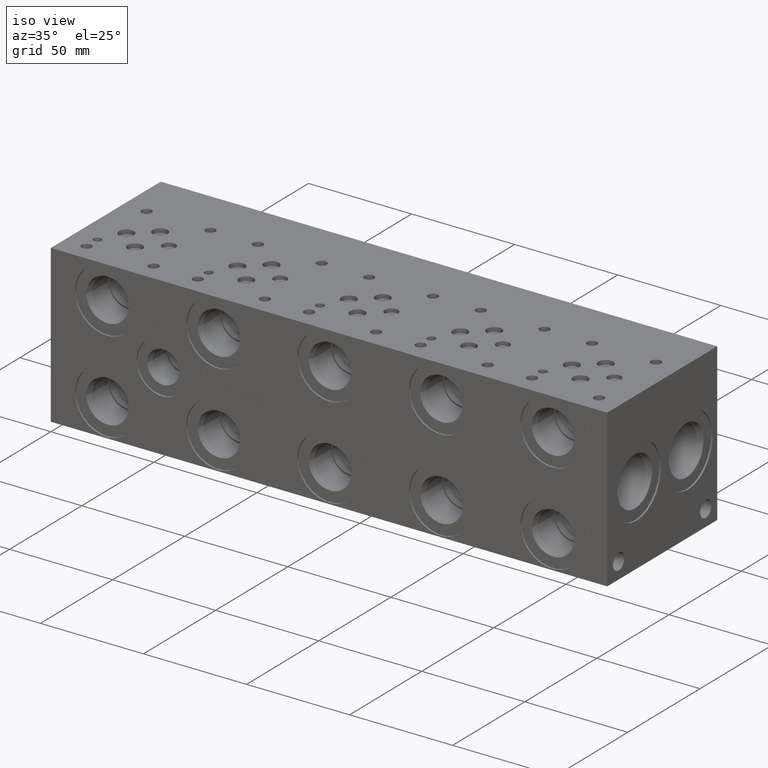
[diagram: clean part render]
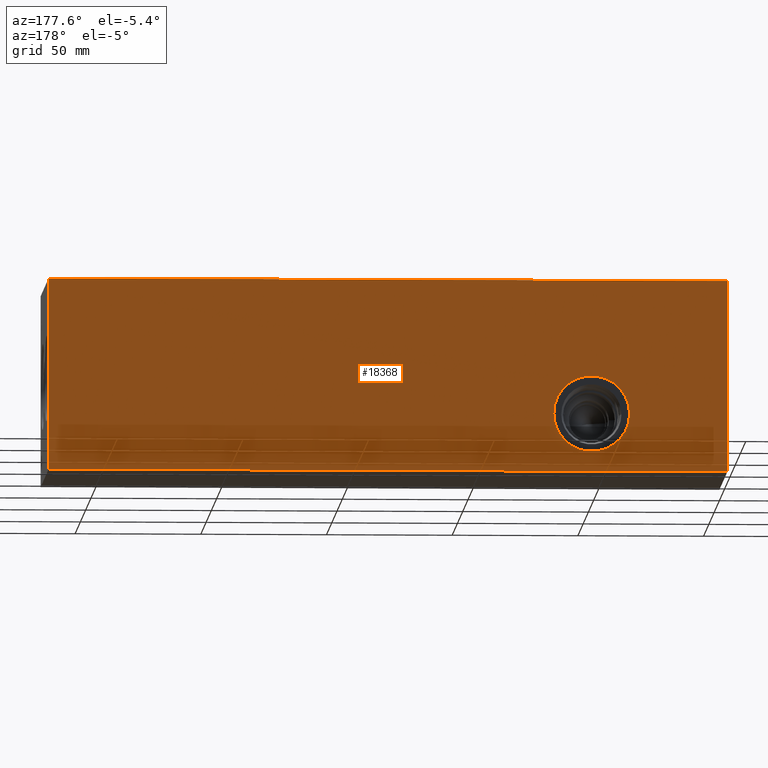
[diagram: tour spotlight — one face highlighted and labeled with its STEP entity id]
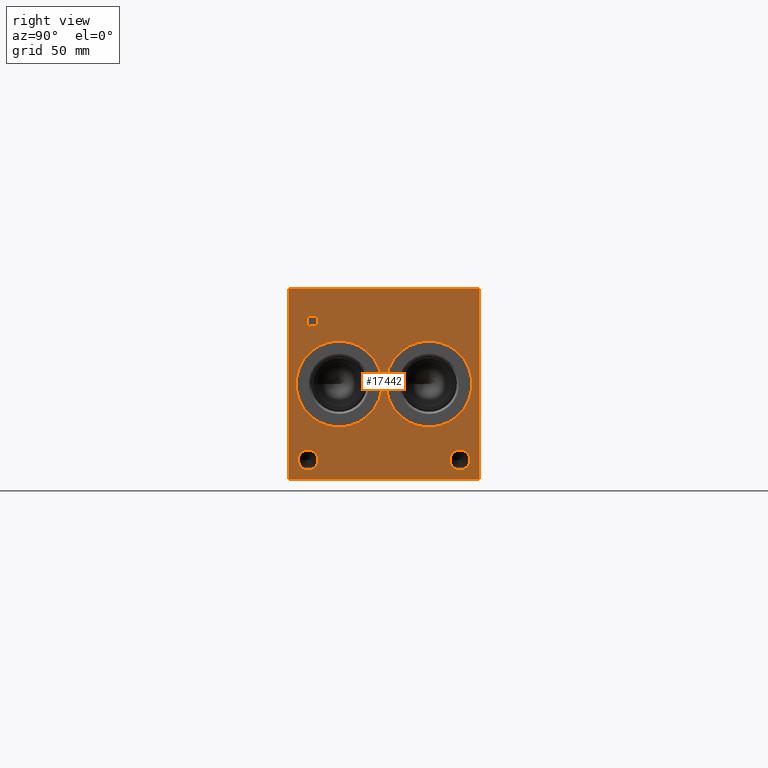
[diagram: tour spotlight — one face highlighted and labeled with its STEP entity id]
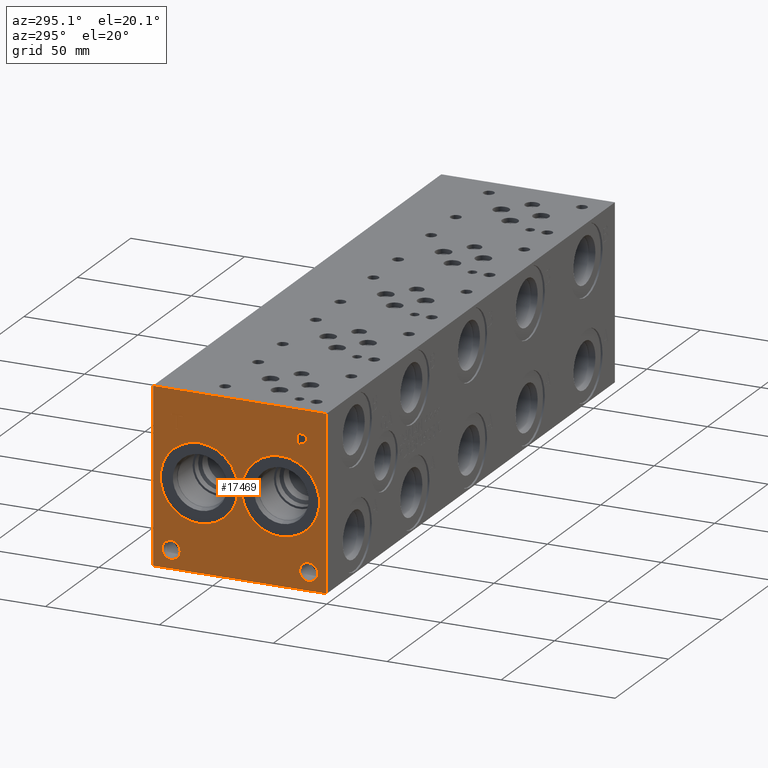
[diagram: tour spotlight — one face highlighted and labeled with its STEP entity id]
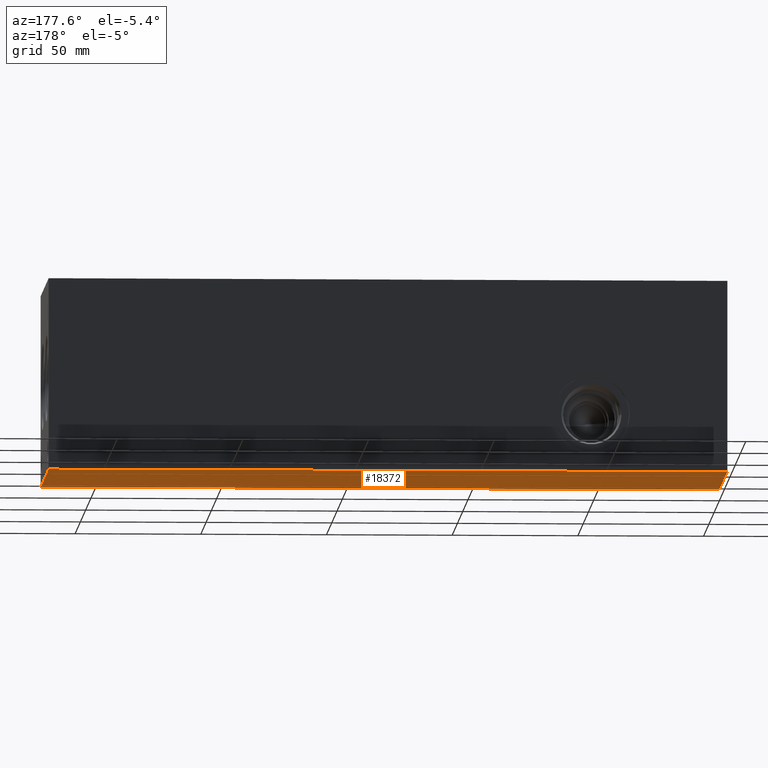
[diagram: tour spotlight — one face highlighted and labeled with its STEP entity id]
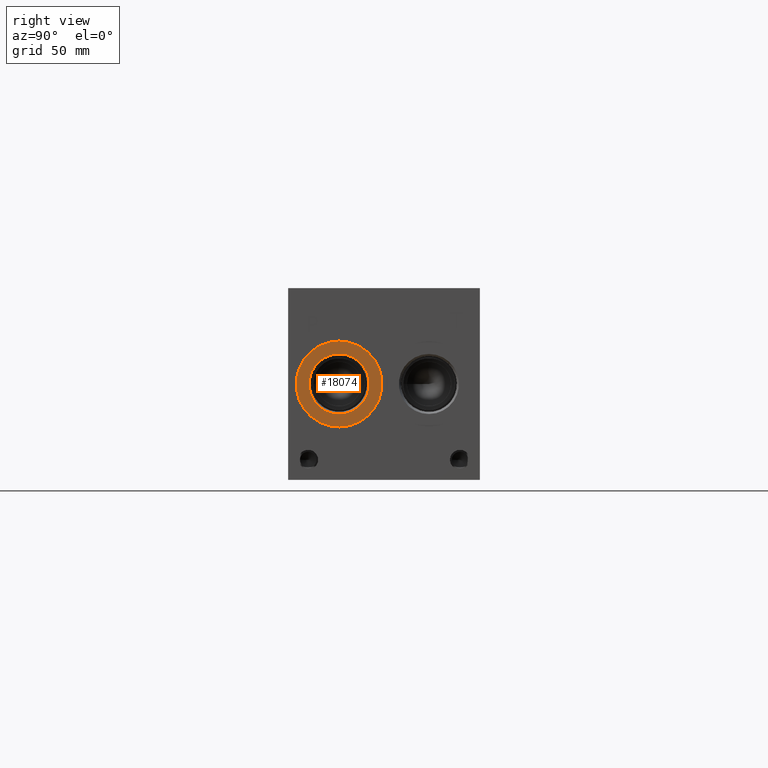
[diagram: tour spotlight — one face highlighted and labeled with its STEP entity id]
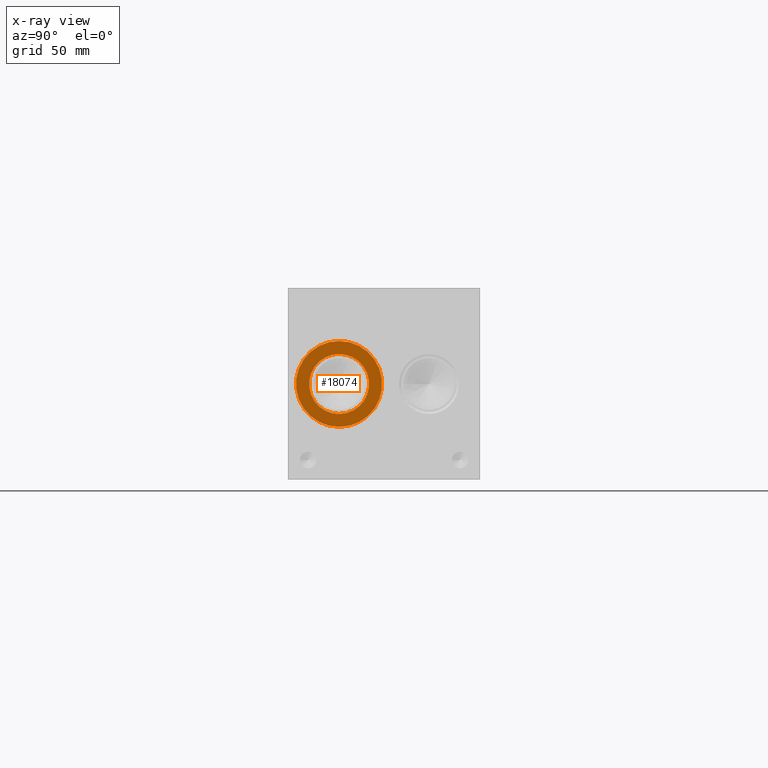
[diagram: x-ray of the same camera — body ghosted, this tour face saturated]
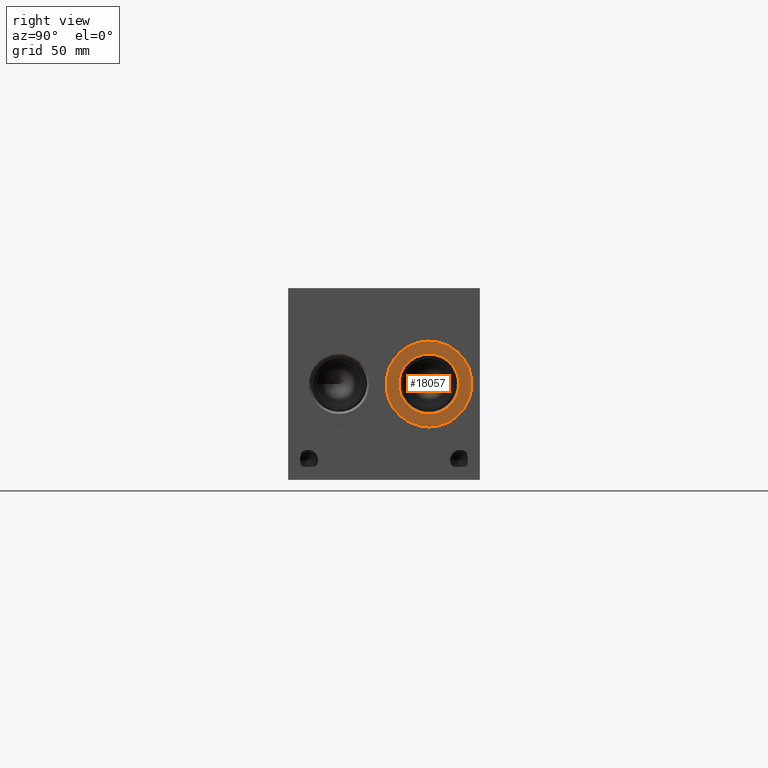
[diagram: tour spotlight — one face highlighted and labeled with its STEP entity id]
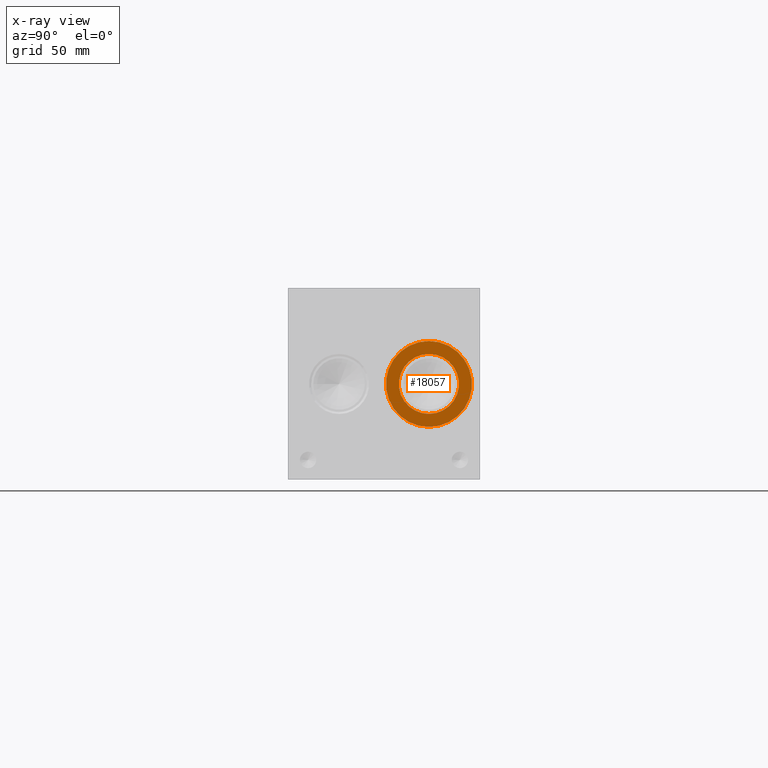
[diagram: x-ray of the same camera — body ghosted, this tour face saturated]
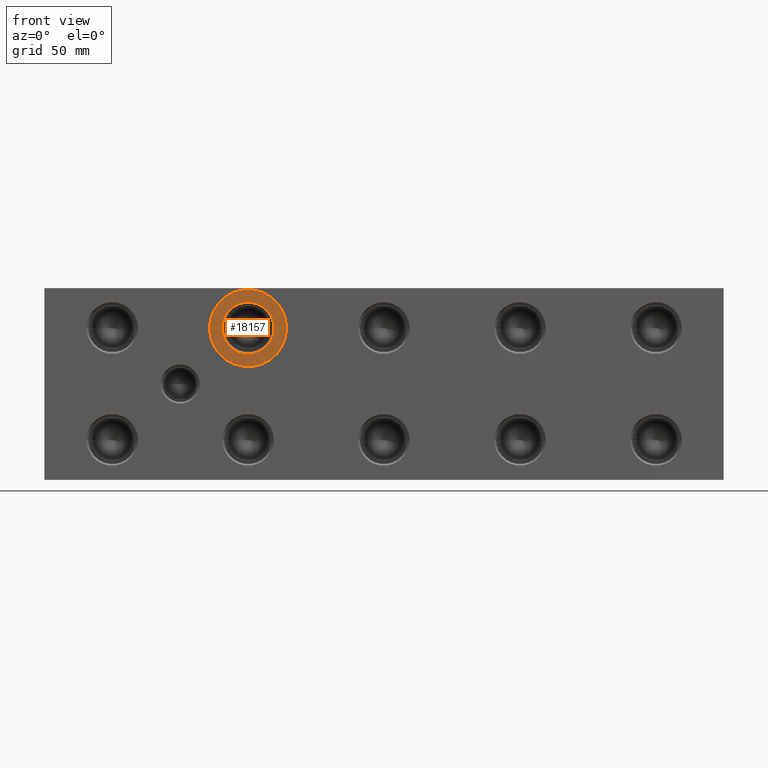
[diagram: tour spotlight — one face highlighted and labeled with its STEP entity id]
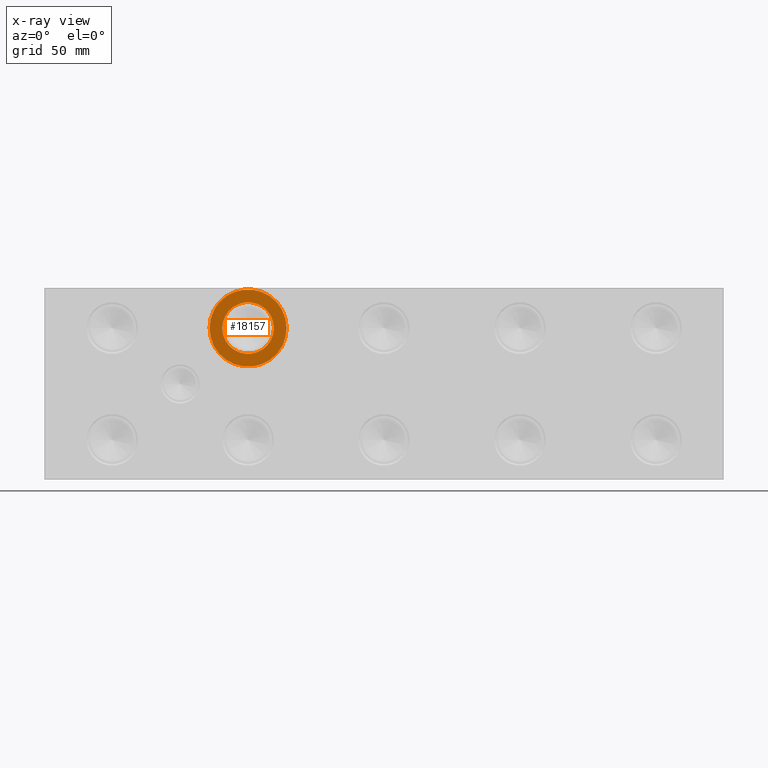
[diagram: x-ray of the same camera — body ghosted, this tour face saturated]
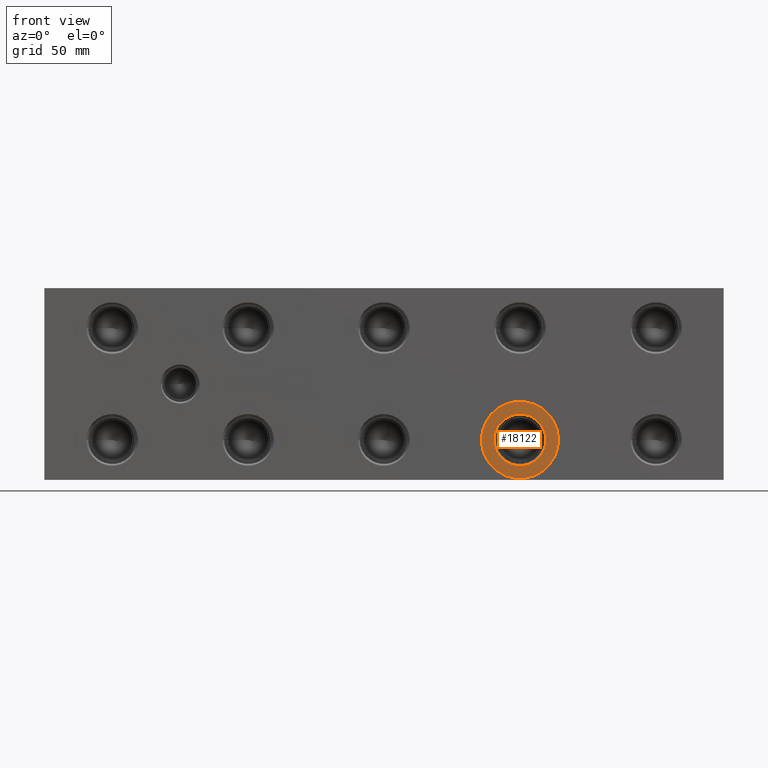
[diagram: tour spotlight — one face highlighted and labeled with its STEP entity id]
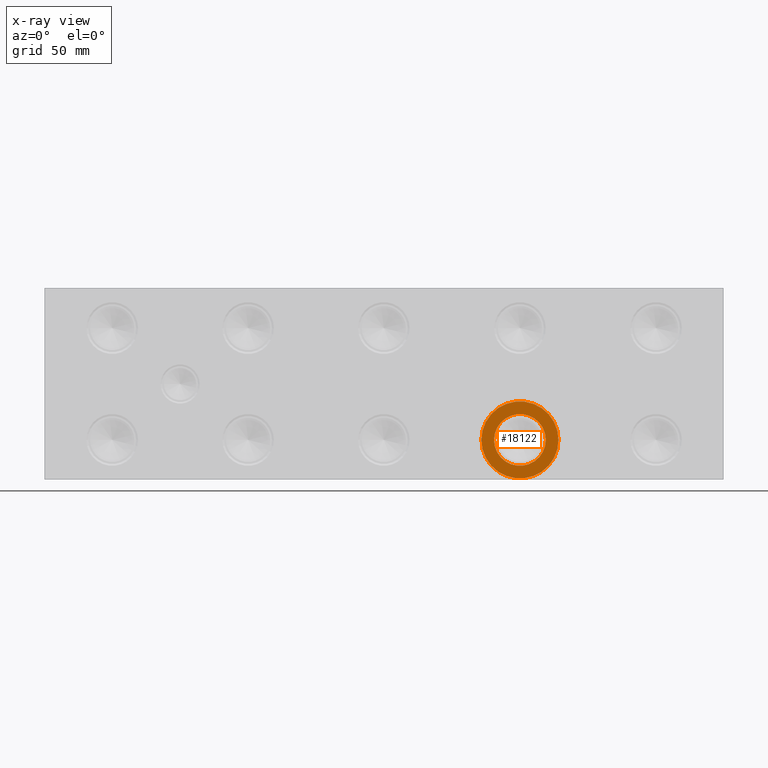
[diagram: x-ray of the same camera — body ghosted, this tour face saturated]
A machine part: a face-by-face anatomy tour. The part has 957 B-rep faces; the first image is the clean iso view, then the 8 largest visible faces are spotlighted one at a time (largest first), each with its STEP entity span.

Face 1 — auxiliary view, entity #18368. In plain terms, the highlighted planar face has unit normal (0, 1, 0).
Definition (entity closure, byte-faithful):
#320=CIRCLE('',#18830,15.08);
#321=CIRCLE('',#18831,15.08);
#1001=FACE_BOUND('',#3762,.T.);
#2668=FACE_OUTER_BOUND('',#3761,.T.);
#3761=EDGE_LOOP('',(#16233,#16234,#16235,#16236));
#3762=EDGE_LOOP('',(#16237,#16238));
#3869=LINE('',#24128,#5401);
#3931=LINE('',#24406,#5463);
#5342=LINE('',#32072,#6874);
#5343=LINE('',#32073,#6875);
#5401=VECTOR('',#19801,10.);
#5463=VECTOR('',#19917,10.);
#6874=VECTOR('',#23862,10.);
#6875=VECTOR('',#23863,10.);
#6925=VERTEX_POINT('',#24125);
#6926=VERTEX_POINT('',#24127);
#6984=VERTEX_POINT('',#24399);
#6987=VERTEX_POINT('',#24404);
#8054=VERTEX_POINT('',#30324);
#8055=VERTEX_POINT('',#30325);
#8737=EDGE_CURVE('',#6925,#6926,#3869,.T.);
#8823=EDGE_CURVE('',#6984,#6987,#3931,.T.);
#10410=EDGE_CURVE('',#8054,#8055,#320,.T.);
#10411=EDGE_CURVE('',#8055,#8054,#321,.T.);
#11223=EDGE_CURVE('',#6925,#6984,#5342,.T.);
#11224=EDGE_CURVE('',#6926,#6987,#5343,.T.);
#16233=ORIENTED_EDGE('',*,*,#11223,.T.);
#16234=ORIENTED_EDGE('',*,*,#8823,.T.);
#16235=ORIENTED_EDGE('',*,*,#11224,.F.);
#16236=ORIENTED_EDGE('',*,*,#8737,.F.);
#16237=ORIENTED_EDGE('',*,*,#10410,.T.);
#16238=ORIENTED_EDGE('',*,*,#10411,.T.);
#16808=PLANE('',#19699);
#18368=ADVANCED_FACE('',(#2668,#1001),#16808,.T.);
#18830=AXIS2_PLACEMENT_3D('',#30326,#21854,#21855);
#18831=AXIS2_PLACEMENT_3D('',#30327,#21856,#21857);
#19699=AXIS2_PLACEMENT_3D('',#32071,#23860,#23861);
#19801=DIRECTION('',(0.,0.,1.));
#19917=DIRECTION('',(0.,0.,1.));
#21854=DIRECTION('center_axis',(0.,-1.,0.));
#21855=DIRECTION('ref_axis',(1.,0.,0.));
#21856=DIRECTION('center_axis',(0.,-1.,0.));
#21857=DIRECTION('ref_axis',(1.,0.,0.));
#23860=DIRECTION('center_axis',(0.,1.,0.));
#23861=DIRECTION('ref_axis',(-1.,0.,0.));
#23862=DIRECTION('',(-1.,0.,0.));
#23863=DIRECTION('',(-1.,0.,0.));
#24125=CARTESIAN_POINT('',(270.002,76.2,0.));
#24127=CARTESIAN_POINT('',(270.002,76.2,76.2));
#24128=CARTESIAN_POINT('',(270.002,76.2,0.));
#24399=CARTESIAN_POINT('',(0.,76.2,0.));
#24404=CARTESIAN_POINT('',(0.,76.2,76.2));
#24406=CARTESIAN_POINT('',(0.,76.2,0.));
#30324=CARTESIAN_POINT('',(69.055,76.2,23.0124));
#30325=CARTESIAN_POINT('',(38.895,76.2,23.0124));
#30326=CARTESIAN_POINT('Origin',(53.975,76.2,23.0124));
#30327=CARTESIAN_POINT('Origin',(53.975,76.2,23.0124));
#32071=CARTESIAN_POINT('Origin',(270.002,76.2,0.));
#32072=CARTESIAN_POINT('',(270.002,76.2,0.));
#32073=CARTESIAN_POINT('',(270.002,76.2,76.2));

Face 2 — right view, entity #17442. In plain terms, the highlighted planar face has unit normal (1, 0, 0).
Definition (entity closure, byte-faithful):
#282=CIRCLE('',#18406,3.9624);
#283=CIRCLE('',#18407,3.9624);
#284=CIRCLE('',#18408,3.9624);
#285=CIRCLE('',#18409,3.9624);
#286=CIRCLE('',#18410,17.0688);
#287=CIRCLE('',#18411,17.0688);
#288=CIRCLE('',#18412,17.0688);
#289=CIRCLE('',#18413,17.0688);
#866=FACE_BOUND('',#2701,.T.);
#867=FACE_BOUND('',#2702,.T.);
#868=FACE_BOUND('',#2703,.T.);
#869=FACE_BOUND('',#2704,.T.);
#870=FACE_BOUND('',#2705,.T.);
#871=FACE_BOUND('',#2706,.T.);
#1055=B_SPLINE_CURVE_WITH_KNOTS('',2,(#24026,#24027,#24028,#24029),
 .UNSPECIFIED.,.F.,.F.,(3,1,3),(0.,1.,2.),.UNSPECIFIED.);
#1057=B_SPLINE_CURVE_WITH_KNOTS('',2,(#24047,#24048,#24049,#24050),
 .UNSPECIFIED.,.F.,.F.,(3,1,3),(0.,1.,2.),.UNSPECIFIED.);
#1059=B_SPLINE_CURVE_WITH_KNOTS('',2,(#24096,#24097,#24098,#24099),
 .UNSPECIFIED.,.F.,.F.,(3,1,3),(0.,1.,2.),.UNSPECIFIED.);
#1061=B_SPLINE_CURVE_WITH_KNOTS('',2,(#24114,#24115,#24116,#24117),
 .UNSPECIFIED.,.F.,.F.,(3,1,3),(0.,1.,2.),.UNSPECIFIED.);
#1742=FACE_OUTER_BOUND('',#2700,.T.);
#2700=EDGE_LOOP('',(#11345,#11346,#11347,#11348));
#2701=EDGE_LOOP('',(#11349,#11350,#11351,#11352,#11353,#11354,#11355,#11356));
#2702=EDGE_LOOP('',(#11357,#11358));
#2703=EDGE_LOOP('',(#11359,#11360));
#2704=EDGE_LOOP('',(#11361,#11362));
#2705=EDGE_LOOP('',(#11363,#11364));
#2706=EDGE_LOOP('',(#11365,#11366,#11367,#11368,#11369,#11370,#11371,#11372,
#11373));
#3812=LINE('',#23876,#5344);
#3816=LINE('',#23884,#5348);
#3819=LINE('',#23890,#5351);
#3822=LINE('',#23896,#5354);
#3825=LINE('',#23902,#5357);
#3828=LINE('',#23908,#5360);
#3831=LINE('',#23914,#5363);
#3834=LINE('',#23919,#5366);
#3852=LINE('',#24059,#5384);
#3855=LINE('',#24065,#5387);
#3858=LINE('',#24071,#5390);
#3861=LINE('',#24077,#5393);
#3864=LINE('',#24083,#5396);
#3868=LINE('',#24126,#5400);
#3869=LINE('',#24128,#5401);
#3870=LINE('',#24130,#5402);
#3871=LINE('',#24131,#5403);
#5344=VECTOR('',#19708,10.);
#5348=VECTOR('',#19714,10.);
#5351=VECTOR('',#19719,10.);
#5354=VECTOR('',#19724,10.);
#5357=VECTOR('',#19729,10.);
#5360=VECTOR('',#19734,10.);
#5363=VECTOR('',#19739,10.);
#5366=VECTOR('',#19744,10.);
#5384=VECTOR('',#19772,10.);
#5387=VECTOR('',#19777,10.);
#5390=VECTOR('',#19782,10.);
#5393=VECTOR('',#19787,10.);
#5396=VECTOR('',#19792,10.);
#5400=VECTOR('',#19800,10.);
#5401=VECTOR('',#19801,10.);
#5402=VECTOR('',#19802,10.);
#5403=VECTOR('',#19803,10.);
#6876=VERTEX_POINT('',#23874);
#6877=VERTEX_POINT('',#23875);
#6880=VERTEX_POINT('',#23883);
#6882=VERTEX_POINT('',#23889);
#6884=VERTEX_POINT('',#23895);
#6886=VERTEX_POINT('',#23901);
#6888=VERTEX_POINT('',#23907);
#6890=VERTEX_POINT('',#23913);
#6906=VERTEX_POINT('',#24024);
#6907=VERTEX_POINT('',#24025);
#6910=VERTEX_POINT('',#24046);
#6912=VERTEX_POINT('',#24058);
#6914=VERTEX_POINT('',#24064);
#6916=VERTEX_POINT('',#24070);
#6918=VERTEX_POINT('',#24076);
#6920=VERTEX_POINT('',#24082);
#6922=VERTEX_POINT('',#24095);
#6924=VERTEX_POINT('',#24124);
#6925=VERTEX_POINT('',#24125);
#6926=VERTEX_POINT('',#24127);
#6927=VERTEX_POINT('',#24129);
#6928=VERTEX_POINT('',#24132);
#6929=VERTEX_POINT('',#24133);
#6930=VERTEX_POINT('',#24136);
#6931=VERTEX_POINT('',#24137);
#6932=VERTEX_POINT('',#24140);
#6933=VERTEX_POINT('',#24141);
#6934=VERTEX_POINT('',#24144);
#6935=VERTEX_POINT('',#24145);
#8664=EDGE_CURVE('',#6876,#6877,#3812,.T.);
#8668=EDGE_CURVE('',#6880,#6876,#3816,.T.);
#8671=EDGE_CURVE('',#6882,#6880,#3819,.T.);
#8674=EDGE_CURVE('',#6884,#6882,#3822,.T.);
#8677=EDGE_CURVE('',#6886,#6884,#3825,.T.);
#8680=EDGE_CURVE('',#6888,#6886,#3828,.T.);
#8683=EDGE_CURVE('',#6890,#6888,#3831,.T.);
#8686=EDGE_CURVE('',#6877,#6890,#3834,.T.);
#8709=EDGE_CURVE('',#6906,#6907,#1055,.T.);
#8713=EDGE_CURVE('',#6910,#6906,#1057,.T.);
#8716=EDGE_CURVE('',#6912,#6910,#3852,.T.);
#8719=EDGE_CURVE('',#6914,#6912,#3855,.T.);
#8722=EDGE_CURVE('',#6916,#6914,#3858,.T.);
#8725=EDGE_CURVE('',#6918,#6916,#3861,.T.);
#8728=EDGE_CURVE('',#6920,#6918,#3864,.T.);
#8731=EDGE_CURVE('',#6922,#6920,#1059,.T.);
#8734=EDGE_CURVE('',#6907,#6922,#1061,.T.);
#8736=EDGE_CURVE('',#6924,#6925,#3868,.T.);
#8737=EDGE_CURVE('',#6925,#6926,#3869,.T.);
#8738=EDGE_CURVE('',#6927,#6926,#3870,.T.);
#8739=EDGE_CURVE('',#6924,#6927,#3871,.T.);
#8740=EDGE_CURVE('',#6928,#6929,#282,.T.);
#8741=EDGE_CURVE('',#6929,#6928,#283,.T.);
#8742=EDGE_CURVE('',#6930,#6931,#284,.T.);
#8743=EDGE_CURVE('',#6931,#6930,#285,.T.);
#8744=EDGE_CURVE('',#6932,#6933,#286,.T.);
#8745=EDGE_CURVE('',#6933,#6932,#287,.T.);
#8746=EDGE_CURVE('',#6934,#6935,#288,.T.);
#8747=EDGE_CURVE('',#6935,#6934,#289,.T.);
#11345=ORIENTED_EDGE('',*,*,#8736,.T.);
#11346=ORIENTED_EDGE('',*,*,#8737,.T.);
#11347=ORIENTED_EDGE('',*,*,#8738,.F.);
#11348=ORIENTED_EDGE('',*,*,#8739,.F.);
#11349=ORIENTED_EDGE('',*,*,#8664,.T.);
#11350=ORIENTED_EDGE('',*,*,#8686,.T.);
#11351=ORIENTED_EDGE('',*,*,#8683,.T.);
#11352=ORIENTED_EDGE('',*,*,#8680,.T.);
#11353=ORIENTED_EDGE('',*,*,#8677,.T.);
#11354=ORIENTED_EDGE('',*,*,#8674,.T.);
#11355=ORIENTED_EDGE('',*,*,#8671,.T.);
#11356=ORIENTED_EDGE('',*,*,#8668,.T.);
#11357=ORIENTED_EDGE('',*,*,#8740,.T.);
#11358=ORIENTED_EDGE('',*,*,#8741,.T.);
#11359=ORIENTED_EDGE('',*,*,#8742,.T.);
#11360=ORIENTED_EDGE('',*,*,#8743,.T.);
#11361=ORIENTED_EDGE('',*,*,#8744,.T.);
#11362=ORIENTED_EDGE('',*,*,#8745,.T.);
#11363=ORIENTED_EDGE('',*,*,#8746,.T.);
#11364=ORIENTED_EDGE('',*,*,#8747,.T.);
#11365=ORIENTED_EDGE('',*,*,#8709,.T.);
#11366=ORIENTED_EDGE('',*,*,#8734,.T.);
#11367=ORIENTED_EDGE('',*,*,#8731,.T.);
#11368=ORIENTED_EDGE('',*,*,#8728,.T.);
#11369=ORIENTED_EDGE('',*,*,#8725,.T.);
#11370=ORIENTED_EDGE('',*,*,#8722,.T.);
#11371=ORIENTED_EDGE('',*,*,#8719,.T.);
#11372=ORIENTED_EDGE('',*,*,#8716,.T.);
#11373=ORIENTED_EDGE('',*,*,#8713,.T.);
#16365=PLANE('',#18405);
#17442=ADVANCED_FACE('',(#1742,#866,#867,#868,#869,#870,#871),#16365,.T.);
#18405=AXIS2_PLACEMENT_3D('',#24123,#19798,#19799);
#18406=AXIS2_PLACEMENT_3D('',#24134,#19804,#19805);
#18407=AXIS2_PLACEMENT_3D('',#24135,#19806,#19807);
#18408=AXIS2_PLACEMENT_3D('',#24138,#19808,#19809);
#18409=AXIS2_PLACEMENT_3D('',#24139,#19810,#19811);
#18410=AXIS2_PLACEMENT_3D('',#24142,#19812,#19813);
#18411=AXIS2_PLACEMENT_3D('',#24143,#19814,#19815);
#18412=AXIS2_PLACEMENT_3D('',#24146,#19816,#19817);
#18413=AXIS2_PLACEMENT_3D('',#24147,#19818,#19819);
#19708=DIRECTION('',(0.,-1.,0.));
#19714=DIRECTION('',(0.,0.,-1.));
#19719=DIRECTION('',(0.,-1.,0.));
#19724=DIRECTION('',(0.,0.,-1.));
#19729=DIRECTION('',(0.,1.,0.));
#19734=DIRECTION('',(0.,0.,1.));
#19739=DIRECTION('',(0.,-1.,0.));
#19744=DIRECTION('',(0.,0.,1.));
#19772=DIRECTION('',(0.,1.,0.));
#19777=DIRECTION('',(0.,0.,1.));
#19782=DIRECTION('',(0.,-1.,0.));
#19787=DIRECTION('',(0.,0.,-1.));
#19792=DIRECTION('',(0.,-1.,0.));
#19798=DIRECTION('center_axis',(1.,0.,0.));
#19799=DIRECTION('ref_axis',(0.,1.,0.));
#19800=DIRECTION('',(0.,1.,0.));
#19801=DIRECTION('',(0.,0.,1.));
#19802=DIRECTION('',(0.,1.,0.));
#19803=DIRECTION('',(0.,0.,1.));
#19804=DIRECTION('center_axis',(-1.,0.,0.));
#19805=DIRECTION('ref_axis',(0.,1.,0.));
#19806=DIRECTION('center_axis',(-1.,0.,0.));
#19807=DIRECTION('ref_axis',(0.,1.,0.));
#19808=DIRECTION('center_axis',(-1.,0.,0.));
#19809=DIRECTION('ref_axis',(0.,1.,0.));
#19810=DIRECTION('center_axis',(-1.,0.,0.));
#19811=DIRECTION('ref_axis',(0.,1.,0.));
#19812=DIRECTION('center_axis',(-1.,0.,0.));
#19813=DIRECTION('ref_axis',(0.,0.,-1.));
#19814=DIRECTION('center_axis',(-1.,0.,0.));
#19815=DIRECTION('ref_axis',(0.,0.,-1.));
#19816=DIRECTION('center_axis',(-1.,0.,0.));
#19817=DIRECTION('ref_axis',(0.,0.,-1.));
#19818=DIRECTION('center_axis',(-1.,0.,0.));
#19819=DIRECTION('ref_axis',(0.,0.,-1.));
#23874=CARTESIAN_POINT('',(270.002,67.262915271453,60.325));
#23875=CARTESIAN_POINT('',(270.002,66.4189930799135,60.325));
#23876=CARTESIAN_POINT('',(270.002,33.6314576357265,60.325));
#23883=CARTESIAN_POINT('',(270.002,67.262915271453,65.9237033194816));
#23884=CARTESIAN_POINT('',(270.002,67.262915271453,32.9618516597408));
#23889=CARTESIAN_POINT('',(270.002,69.3933042183881,65.9237033194816));
#23890=CARTESIAN_POINT('',(270.002,34.696652109194,65.9237033194816));
#23895=CARTESIAN_POINT('',(270.002,69.3933042183881,66.6749999046326));
#23896=CARTESIAN_POINT('',(270.002,69.3933042183881,33.3374999523163));
#23901=CARTESIAN_POINT('',(270.002,64.2886041329784,66.6749999046326));
#23902=CARTESIAN_POINT('',(270.002,32.1443020664892,66.6749999046326));
#23907=CARTESIAN_POINT('',(270.002,64.2886041329784,65.9237033194816));
#23908=CARTESIAN_POINT('',(270.002,64.2886041329784,32.9618516597408));
#23913=CARTESIAN_POINT('',(270.002,66.4189930799135,65.9237033194816));
#23914=CARTESIAN_POINT('',(270.002,33.2094965399567,65.9237033194816));
#23919=CARTESIAN_POINT('',(270.002,66.4189930799135,30.1625));
#24024=CARTESIAN_POINT('',(270.002,11.0443172023594,64.6912681439707));
#24025=CARTESIAN_POINT('',(270.002,11.800759654532,63.1732373726039));
#24026=CARTESIAN_POINT('Ctrl Pts',(270.002,11.0443172023594,64.6912681439707));
#24027=CARTESIAN_POINT('Ctrl Pts',(270.002,11.3993820268486,64.4494123939564));
#24028=CARTESIAN_POINT('Ctrl Pts',(270.002,11.800759654532,63.7032616758269));
#24029=CARTESIAN_POINT('Ctrl Pts',(270.002,11.800759654532,63.1732373726039));
#24046=CARTESIAN_POINT('',(270.002,9.3822021543883,65.0874999046326));
#24047=CARTESIAN_POINT('Ctrl Pts',(270.002,9.3822021543883,65.0874999046326));
#24048=CARTESIAN_POINT('Ctrl Pts',(270.002,9.94824752676236,65.0874999046326));
#24049=CARTESIAN_POINT('Ctrl Pts',(270.002,10.740711048086,64.9022486918556));
#24050=CARTESIAN_POINT('Ctrl Pts',(270.002,11.0443172023594,64.6912681439707));
#24058=CARTESIAN_POINT('',(270.002,7.78698337769779,65.0874999046326));
#24059=CARTESIAN_POINT('',(270.002,3.89349168884889,65.0874999046326));
#24064=CARTESIAN_POINT('',(270.002,7.78698337769779,58.7375));
#24065=CARTESIAN_POINT('',(270.002,7.78698337769779,29.36875));
#24070=CARTESIAN_POINT('',(270.002,8.63090556923729,58.7375));
#24071=CARTESIAN_POINT('',(270.002,4.31545278461864,58.7375));
#24076=CARTESIAN_POINT('',(270.002,8.63090556923729,61.1045988299279));
#24077=CARTESIAN_POINT('',(270.002,8.63090556923729,30.5522994149639));
#24082=CARTESIAN_POINT('',(270.002,9.34618108523723,61.1045988299279));
#24083=CARTESIAN_POINT('',(270.002,4.67309054261861,61.1045988299279));
#24095=CARTESIAN_POINT('',(270.002,11.2450060162011,61.7632698086904));
#24096=CARTESIAN_POINT('Ctrl Pts',(270.002,11.2450060162011,61.7632698086904));
#24097=CARTESIAN_POINT('Ctrl Pts',(270.002,10.9156705268198,61.4390801863307));
#24098=CARTESIAN_POINT('Ctrl Pts',(270.002,10.0254355320861,61.1045988299279));
#24099=CARTESIAN_POINT('Ctrl Pts',(270.002,9.34618108523723,61.1045988299279));
#24114=CARTESIAN_POINT('Ctrl Pts',(270.002,11.800759654532,63.1732373726039));
#24115=CARTESIAN_POINT('Ctrl Pts',(270.002,11.800759654532,62.7615680108774));
#24116=CARTESIAN_POINT('Ctrl Pts',(270.002,11.5074452343018,62.0205631597695));
#24117=CARTESIAN_POINT('Ctrl Pts',(270.002,11.2450060162011,61.7632698086904));
#24123=CARTESIAN_POINT('Origin',(270.002,0.,0.));
#24124=CARTESIAN_POINT('',(270.002,0.,0.));
#24125=CARTESIAN_POINT('',(270.002,76.2,0.));
#24126=CARTESIAN_POINT('',(270.002,0.,0.));
#24127=CARTESIAN_POINT('',(270.002,76.2,76.2));
#24128=CARTESIAN_POINT('',(270.002,76.2,0.));
#24129=CARTESIAN_POINT('',(270.002,0.,76.2));
#24130=CARTESIAN_POINT('',(270.002,0.,76.2));
#24131=CARTESIAN_POINT('',(270.002,0.,0.));
#24132=CARTESIAN_POINT('',(270.002,72.2376,7.9248));
#24133=CARTESIAN_POINT('',(270.002,64.3128,7.9248));
#24134=CARTESIAN_POINT('Origin',(270.002,68.2752,7.9248));
#24135=CARTESIAN_POINT('Origin',(270.002,68.2752,7.9248));
#24136=CARTESIAN_POINT('',(270.002,11.8872,7.9248));
#24137=CARTESIAN_POINT('',(270.002,3.9624,7.9248));
#24138=CARTESIAN_POINT('Origin',(270.002,7.9248,7.9248));
#24139=CARTESIAN_POINT('Origin',(270.002,7.9248,7.9248));
#24140=CARTESIAN_POINT('',(270.002,20.2438,21.0312));
#24141=CARTESIAN_POINT('',(270.002,20.2438,55.1688));
#24142=CARTESIAN_POINT('Origin',(270.002,20.2438,38.1));
#24143=CARTESIAN_POINT('Origin',(270.002,20.2438,38.1));
#24144=CARTESIAN_POINT('',(270.002,55.9562,21.0312));
#24145=CARTESIAN_POINT('',(270.002,55.9562,55.1688));
#24146=CARTESIAN_POINT('Origin',(270.002,55.9562,38.1));
#24147=CARTESIAN_POINT('Origin',(270.002,55.9562,38.1));

Face 3 — auxiliary view, entity #17469. In plain terms, the highlighted planar face has unit normal (-1, 0, 0).
Definition (entity closure, byte-faithful):
#290=CIRCLE('',#18433,3.9624);
#291=CIRCLE('',#18434,3.9624);
#292=CIRCLE('',#18435,3.9624);
#293=CIRCLE('',#18436,3.9624);
#294=CIRCLE('',#18437,17.0688);
#295=CIRCLE('',#18438,17.0688);
#296=CIRCLE('',#18439,17.0688);
#297=CIRCLE('',#18440,17.0688);
#873=FACE_BOUND('',#2735,.T.);
#874=FACE_BOUND('',#2736,.T.);
#875=FACE_BOUND('',#2737,.T.);
#876=FACE_BOUND('',#2738,.T.);
#877=FACE_BOUND('',#2739,.T.);
#878=FACE_BOUND('',#2740,.T.);
#1071=B_SPLINE_CURVE_WITH_KNOTS('',2,(#24301,#24302,#24303,#24304),
 .UNSPECIFIED.,.F.,.F.,(3,1,3),(0.,1.,2.),.UNSPECIFIED.);
#1073=B_SPLINE_CURVE_WITH_KNOTS('',2,(#24322,#24323,#24324,#24325),
 .UNSPECIFIED.,.F.,.F.,(3,1,3),(0.,1.,2.),.UNSPECIFIED.);
#1075=B_SPLINE_CURVE_WITH_KNOTS('',2,(#24371,#24372,#24373,#24374),
 .UNSPECIFIED.,.F.,.F.,(3,1,3),(0.,1.,2.),.UNSPECIFIED.);
#1077=B_SPLINE_CURVE_WITH_KNOTS('',2,(#24389,#24390,#24391,#24392),
 .UNSPECIFIED.,.F.,.F.,(3,1,3),(0.,1.,2.),.UNSPECIFIED.);
#1769=FACE_OUTER_BOUND('',#2734,.T.);
#2734=EDGE_LOOP('',(#11494,#11495,#11496,#11497));
#2735=EDGE_LOOP('',(#11498,#11499,#11500,#11501,#11502,#11503,#11504,#11505));
#2736=EDGE_LOOP('',(#11506,#11507));
#2737=EDGE_LOOP('',(#11508,#11509));
#2738=EDGE_LOOP('',(#11510,#11511));
#2739=EDGE_LOOP('',(#11512,#11513));
#2740=EDGE_LOOP('',(#11514,#11515,#11516,#11517,#11518,#11519,#11520,#11521,
#11522));
#3872=LINE('',#24151,#5404);
#3876=LINE('',#24159,#5408);
#3879=LINE('',#24165,#5411);
#3882=LINE('',#24171,#5414);
#3885=LINE('',#24177,#5417);
#3888=LINE('',#24183,#5420);
#3891=LINE('',#24189,#5423);
#3894=LINE('',#24194,#5426);
#3912=LINE('',#24334,#5444);
#3915=LINE('',#24340,#5447);
#3918=LINE('',#24346,#5450);
#3921=LINE('',#24352,#5453);
#3924=LINE('',#24358,#5456);
#3928=LINE('',#24401,#5460);
#3929=LINE('',#24403,#5461);
#3930=LINE('',#24405,#5462);
#3931=LINE('',#24406,#5463);
#5404=VECTOR('',#19822,10.);
#5408=VECTOR('',#19828,10.);
#5411=VECTOR('',#19833,10.);
#5414=VECTOR('',#19838,10.);
#5417=VECTOR('',#19843,10.);
#5420=VECTOR('',#19848,10.);
#5423=VECTOR('',#19853,10.);
#5426=VECTOR('',#19858,10.);
#5444=VECTOR('',#19886,10.);
#5447=VECTOR('',#19891,10.);
#5450=VECTOR('',#19896,10.);
#5453=VECTOR('',#19901,10.);
#5456=VECTOR('',#19906,10.);
#5460=VECTOR('',#19914,10.);
#5461=VECTOR('',#19915,10.);
#5462=VECTOR('',#19916,10.);
#5463=VECTOR('',#19917,10.);
#6936=VERTEX_POINT('',#24149);
#6937=VERTEX_POINT('',#24150);
#6940=VERTEX_POINT('',#24158);
#6942=VERTEX_POINT('',#24164);
#6944=VERTEX_POINT('',#24170);
#6946=VERTEX_POINT('',#24176);
#6948=VERTEX_POINT('',#24182);
#6950=VERTEX_POINT('',#24188);
#6966=VERTEX_POINT('',#24299);
#6967=VERTEX_POINT('',#24300);
#6970=VERTEX_POINT('',#24321);
#6972=VERTEX_POINT('',#24333);
#6974=VERTEX_POINT('',#24339);
#6976=VERTEX_POINT('',#24345);
#6978=VERTEX_POINT('',#24351);
#6980=VERTEX_POINT('',#24357);
#6982=VERTEX_POINT('',#24370);
#6984=VERTEX_POINT('',#24399);
#6985=VERTEX_POINT('',#24400);
#6986=VERTEX_POINT('',#24402);
#6987=VERTEX_POINT('',#24404);
#6988=VERTEX_POINT('',#24407);
#6989=VERTEX_POINT('',#24408);
#6990=VERTEX_POINT('',#24411);
#6991=VERTEX_POINT('',#24412);
#6992=VERTEX_POINT('',#24415);
#6993=VERTEX_POINT('',#24416);
#6994=VERTEX_POINT('',#24419);
#6995=VERTEX_POINT('',#24420);
#8748=EDGE_CURVE('',#6936,#6937,#3872,.T.);
#8752=EDGE_CURVE('',#6940,#6936,#3876,.T.);
#8755=EDGE_CURVE('',#6942,#6940,#3879,.T.);
#8758=EDGE_CURVE('',#6944,#6942,#3882,.T.);
#8761=EDGE_CURVE('',#6946,#6944,#3885,.T.);
#8764=EDGE_CURVE('',#6948,#6946,#3888,.T.);
#8767=EDGE_CURVE('',#6950,#6948,#3891,.T.);
#8770=EDGE_CURVE('',#6937,#6950,#3894,.T.);
#8793=EDGE_CURVE('',#6966,#6967,#1071,.T.);
#8797=EDGE_CURVE('',#6970,#6966,#1073,.T.);
#8800=EDGE_CURVE('',#6972,#6970,#3912,.T.);
#8803=EDGE_CURVE('',#6974,#6972,#3915,.T.);
#8806=EDGE_CURVE('',#6976,#6974,#3918,.T.);
#8809=EDGE_CURVE('',#6978,#6976,#3921,.T.);
#8812=EDGE_CURVE('',#6980,#6978,#3924,.T.);
#8815=EDGE_CURVE('',#6982,#6980,#1075,.T.);
#8818=EDGE_CURVE('',#6967,#6982,#1077,.T.);
#8820=EDGE_CURVE('',#6984,#6985,#3928,.T.);
#8821=EDGE_CURVE('',#6985,#6986,#3929,.T.);
#8822=EDGE_CURVE('',#6987,#6986,#3930,.T.);
#8823=EDGE_CURVE('',#6984,#6987,#3931,.T.);
#8824=EDGE_CURVE('',#6988,#6989,#290,.T.);
#8825=EDGE_CURVE('',#6989,#6988,#291,.T.);
#8826=EDGE_CURVE('',#6990,#6991,#292,.T.);
#8827=EDGE_CURVE('',#6991,#6990,#293,.T.);
#8828=EDGE_CURVE('',#6992,#6993,#294,.T.);
#8829=EDGE_CURVE('',#6993,#6992,#295,.T.);
#8830=EDGE_CURVE('',#6994,#6995,#296,.T.);
#8831=EDGE_CURVE('',#6995,#6994,#297,.T.);
#11494=ORIENTED_EDGE('',*,*,#8820,.T.);
#11495=ORIENTED_EDGE('',*,*,#8821,.T.);
#11496=ORIENTED_EDGE('',*,*,#8822,.F.);
#11497=ORIENTED_EDGE('',*,*,#8823,.F.);
#11498=ORIENTED_EDGE('',*,*,#8748,.T.);
#11499=ORIENTED_EDGE('',*,*,#8770,.T.);
#11500=ORIENTED_EDGE('',*,*,#8767,.T.);
#11501=ORIENTED_EDGE('',*,*,#8764,.T.);
#11502=ORIENTED_EDGE('',*,*,#8761,.T.);
#11503=ORIENTED_EDGE('',*,*,#8758,.T.);
#11504=ORIENTED_EDGE('',*,*,#8755,.T.);
#11505=ORIENTED_EDGE('',*,*,#8752,.T.);
#11506=ORIENTED_EDGE('',*,*,#8824,.T.);
#11507=ORIENTED_EDGE('',*,*,#8825,.T.);
#11508=ORIENTED_EDGE('',*,*,#8826,.T.);
#11509=ORIENTED_EDGE('',*,*,#8827,.T.);
#11510=ORIENTED_EDGE('',*,*,#8828,.T.);
#11511=ORIENTED_EDGE('',*,*,#8829,.T.);
#11512=ORIENTED_EDGE('',*,*,#8830,.T.);
#11513=ORIENTED_EDGE('',*,*,#8831,.T.);
#11514=ORIENTED_EDGE('',*,*,#8793,.T.);
#11515=ORIENTED_EDGE('',*,*,#8818,.T.);
#11516=ORIENTED_EDGE('',*,*,#8815,.T.);
#11517=ORIENTED_EDGE('',*,*,#8812,.T.);
#11518=ORIENTED_EDGE('',*,*,#8809,.T.);
#11519=ORIENTED_EDGE('',*,*,#8806,.T.);
#11520=ORIENTED_EDGE('',*,*,#8803,.T.);
#11521=ORIENTED_EDGE('',*,*,#8800,.T.);
#11522=ORIENTED_EDGE('',*,*,#8797,.T.);
#16384=PLANE('',#18432);
#17469=ADVANCED_FACE('',(#1769,#873,#874,#875,#876,#877,#878),#16384,.T.);
#18432=AXIS2_PLACEMENT_3D('',#24398,#19912,#19913);
#18433=AXIS2_PLACEMENT_3D('',#24409,#19918,#19919);
#18434=AXIS2_PLACEMENT_3D('',#24410,#19920,#19921);
#18435=AXIS2_PLACEMENT_3D('',#24413,#19922,#19923);
#18436=AXIS2_PLACEMENT_3D('',#24414,#19924,#19925);
#18437=AXIS2_PLACEMENT_3D('',#24417,#19926,#19927);
#18438=AXIS2_PLACEMENT_3D('',#24418,#19928,#19929);
#18439=AXIS2_PLACEMENT_3D('',#24421,#19930,#19931);
#18440=AXIS2_PLACEMENT_3D('',#24422,#19932,#19933);
#19822=DIRECTION('',(0.,1.,1.05244112384329E-14));
#19828=DIRECTION('',(0.,3.17280044688052E-15,-1.));
#19833=DIRECTION('',(0.,1.,0.));
#19838=DIRECTION('',(0.,0.,-1.));
#19843=DIRECTION('',(0.,-1.,-3.47984565141735E-15));
#19848=DIRECTION('',(0.,0.,1.));
#19853=DIRECTION('',(0.,1.,4.16909044227779E-15));
#19858=DIRECTION('',(0.,-3.17280044688052E-15,1.));
#19886=DIRECTION('',(0.,-1.,0.));
#19891=DIRECTION('',(0.,-3.14708893596576E-15,1.));
#19896=DIRECTION('',(0.,1.,0.));
#19901=DIRECTION('',(0.,3.75218139805001E-15,-1.));
#19906=DIRECTION('',(0.,1.,0.));
#19912=DIRECTION('center_axis',(-1.,0.,0.));
#19913=DIRECTION('ref_axis',(0.,-1.,0.));
#19914=DIRECTION('',(0.,-1.,0.));
#19915=DIRECTION('',(0.,0.,1.));
#19916=DIRECTION('',(0.,-1.,0.));
#19917=DIRECTION('',(0.,0.,1.));
#19918=DIRECTION('center_axis',(1.,0.,0.));
#19919=DIRECTION('ref_axis',(0.,1.,0.));
#19920=DIRECTION('center_axis',(1.,0.,0.));
#19921=DIRECTION('ref_axis',(0.,1.,0.));
#19922=DIRECTION('center_axis',(1.,0.,0.));
#19923=DIRECTION('ref_axis',(0.,1.,0.));
#19924=DIRECTION('center_axis',(1.,0.,0.));
#19925=DIRECTION('ref_axis',(0.,1.,0.));
#19926=DIRECTION('center_axis',(1.,0.,0.));
#19927=DIRECTION('ref_axis',(0.,0.,1.));
#19928=DIRECTION('center_axis',(1.,0.,0.));
#19929=DIRECTION('ref_axis',(0.,0.,1.));
#19930=DIRECTION('center_axis',(1.,0.,0.));
#19931=DIRECTION('ref_axis',(0.,0.,1.));
#19932=DIRECTION('center_axis',(1.,0.,0.));
#19933=DIRECTION('ref_axis',(0.,0.,1.));
#24149=CARTESIAN_POINT('',(0.,65.293334728547,59.53125));
#24150=CARTESIAN_POINT('',(0.,66.1372569200865,59.53125));
#24151=CARTESIAN_POINT('',(0.,70.7466673642732,59.5312500000001));
#24158=CARTESIAN_POINT('',(0.,65.293334728547,65.1299533194816));
#24159=CARTESIAN_POINT('',(0.,65.2933347285471,32.5649766597408));
#24164=CARTESIAN_POINT('',(0.,63.1629457816119,65.1299533194816));
#24165=CARTESIAN_POINT('',(0.,69.681472890806,65.1299533194816));
#24170=CARTESIAN_POINT('',(0.,63.1629457816119,65.8812499046326));
#24171=CARTESIAN_POINT('',(0.,63.1629457816119,32.9406249523163));
#24176=CARTESIAN_POINT('',(0.,68.2676458670216,65.8812499046326));
#24177=CARTESIAN_POINT('',(0.,72.2338229335107,65.8812499046326));
#24182=CARTESIAN_POINT('',(0.,68.2676458670216,65.1299533194816));
#24183=CARTESIAN_POINT('',(0.,68.2676458670216,32.5649766597408));
#24188=CARTESIAN_POINT('',(0.,66.1372569200865,65.1299533194816));
#24189=CARTESIAN_POINT('',(0.,71.1686284600431,65.1299533194816));
#24194=CARTESIAN_POINT('',(0.,66.1372569200866,29.765625));
#24299=CARTESIAN_POINT('',(0.,9.59318279764059,65.4850181439707));
#24300=CARTESIAN_POINT('',(0.,8.83674034546799,63.966987372604));
#24301=CARTESIAN_POINT('Ctrl Pts',(0.,9.59318279764059,65.4850181439707));
#24302=CARTESIAN_POINT('Ctrl Pts',(0.,9.23811797315141,65.2431623939564));
#24303=CARTESIAN_POINT('Ctrl Pts',(0.,8.83674034546799,64.4970116758269));
#24304=CARTESIAN_POINT('Ctrl Pts',(0.,8.83674034546799,63.966987372604));
#24321=CARTESIAN_POINT('',(0.,11.2552978456117,65.8812499046326));
#24322=CARTESIAN_POINT('Ctrl Pts',(0.,11.2552978456117,65.8812499046326));
#24323=CARTESIAN_POINT('Ctrl Pts',(0.,10.6892524732376,65.8812499046326));
#24324=CARTESIAN_POINT('Ctrl Pts',(0.,9.89678895191394,65.6959986918556));
#24325=CARTESIAN_POINT('Ctrl Pts',(0.,9.59318279764059,65.4850181439707));
#24333=CARTESIAN_POINT('',(0.,12.8505166223022,65.8812499046326));
#24334=CARTESIAN_POINT('',(0.,44.5252583111511,65.8812499046326));
#24339=CARTESIAN_POINT('',(0.,12.8505166223022,59.53125));
#24340=CARTESIAN_POINT('',(0.,12.8505166223023,29.7656249999999));
#24345=CARTESIAN_POINT('',(0.,12.0065944307627,59.53125));
#24346=CARTESIAN_POINT('',(0.,44.1032972153814,59.53125));
#24351=CARTESIAN_POINT('',(0.,12.0065944307627,61.8983488299279));
#24352=CARTESIAN_POINT('',(0.,12.0065944307628,30.9491744149638));
#24357=CARTESIAN_POINT('',(0.,11.2913189147628,61.8983488299279));
#24358=CARTESIAN_POINT('',(0.,43.7456594573814,61.8983488299279));
#24370=CARTESIAN_POINT('',(0.,9.39249398379889,62.5570198086904));
#24371=CARTESIAN_POINT('Ctrl Pts',(0.,9.39249398379889,62.5570198086904));
#24372=CARTESIAN_POINT('Ctrl Pts',(0.,9.72182947318016,62.2328301863307));
#24373=CARTESIAN_POINT('Ctrl Pts',(0.,10.6120644679139,61.8983488299279));
#24374=CARTESIAN_POINT('Ctrl Pts',(0.,11.2913189147628,61.8983488299279));
#24389=CARTESIAN_POINT('Ctrl Pts',(0.,8.83674034546799,63.966987372604));
#24390=CARTESIAN_POINT('Ctrl Pts',(0.,8.83674034546799,63.5553180108774));
#24391=CARTESIAN_POINT('Ctrl Pts',(0.,9.13005476569819,62.8143131597695));
#24392=CARTESIAN_POINT('Ctrl Pts',(0.,9.39249398379889,62.5570198086904));
#24398=CARTESIAN_POINT('Origin',(0.,76.2,0.));
#24399=CARTESIAN_POINT('',(0.,76.2,0.));
#24400=CARTESIAN_POINT('',(0.,0.,0.));
#24401=CARTESIAN_POINT('',(0.,76.2,0.));
#24402=CARTESIAN_POINT('',(0.,0.,76.2));
#24403=CARTESIAN_POINT('',(0.,0.,0.));
#24404=CARTESIAN_POINT('',(0.,76.2,76.2));
#24405=CARTESIAN_POINT('',(0.,76.2,76.2));
#24406=CARTESIAN_POINT('',(0.,76.2,0.));
#24407=CARTESIAN_POINT('',(0.,11.8872,7.92480000000001));
#24408=CARTESIAN_POINT('',(0.,3.9624,7.92480000000001));
#24409=CARTESIAN_POINT('Origin',(0.,7.9248,7.92480000000001));
#24410=CARTESIAN_POINT('Origin',(0.,7.9248,7.92480000000001));
#24411=CARTESIAN_POINT('',(0.,72.2376,7.92480000000001));
#24412=CARTESIAN_POINT('',(0.,64.3128,7.92480000000001));
#24413=CARTESIAN_POINT('Origin',(0.,68.2752,7.92480000000001));
#24414=CARTESIAN_POINT('Origin',(0.,68.2752,7.92480000000001));
#24415=CARTESIAN_POINT('',(0.,20.2438,55.1688));
#24416=CARTESIAN_POINT('',(0.,20.2438,21.0312));
#24417=CARTESIAN_POINT('Origin',(0.,20.2438,38.1));
#24418=CARTESIAN_POINT('Origin',(0.,20.2438,38.1));
#24419=CARTESIAN_POINT('',(0.,55.9562,55.1688));
#24420=CARTESIAN_POINT('',(0.,55.9562,21.0312));
#24421=CARTESIAN_POINT('Origin',(0.,55.9562,38.1));
#24422=CARTESIAN_POINT('Origin',(0.,55.9562,38.1));

Face 4 — auxiliary view, entity #18372. In plain terms, the highlighted planar face has unit normal (0, 0, 1).
Definition (entity closure, byte-faithful):
#2672=FACE_OUTER_BOUND('',#3811,.T.);
#3811=EDGE_LOOP('',(#16343,#16344,#16345,#16346));
#3868=LINE('',#24126,#5400);
#3928=LINE('',#24401,#5460);
#4242=LINE('',#27010,#5774);
#5342=LINE('',#32072,#6874);
#5400=VECTOR('',#19800,10.);
#5460=VECTOR('',#19914,10.);
#5774=VECTOR('',#20398,10.);
#6874=VECTOR('',#23862,10.);
#6924=VERTEX_POINT('',#24124);
#6925=VERTEX_POINT('',#24125);
#6984=VERTEX_POINT('',#24399);
#6985=VERTEX_POINT('',#24400);
#8736=EDGE_CURVE('',#6924,#6925,#3868,.T.);
#8820=EDGE_CURVE('',#6984,#6985,#3928,.T.);
#9372=EDGE_CURVE('',#6985,#6924,#4242,.T.);
#11223=EDGE_CURVE('',#6925,#6984,#5342,.T.);
#16343=ORIENTED_EDGE('',*,*,#9372,.F.);
#16344=ORIENTED_EDGE('',*,*,#8820,.F.);
#16345=ORIENTED_EDGE('',*,*,#11223,.F.);
#16346=ORIENTED_EDGE('',*,*,#8736,.F.);
#16812=PLANE('',#19703);
#18372=ADVANCED_FACE('',(#2672),#16812,.F.);
#19703=AXIS2_PLACEMENT_3D('',#32077,#23870,#23871);
#19800=DIRECTION('',(0.,1.,0.));
#19914=DIRECTION('',(0.,-1.,0.));
#20398=DIRECTION('',(1.,0.,0.));
#23862=DIRECTION('',(-1.,0.,0.));
#23870=DIRECTION('center_axis',(0.,0.,1.));
#23871=DIRECTION('ref_axis',(1.,0.,0.));
#24124=CARTESIAN_POINT('',(270.002,0.,0.));
#24125=CARTESIAN_POINT('',(270.002,76.2,0.));
#24126=CARTESIAN_POINT('',(270.002,0.,0.));
#24399=CARTESIAN_POINT('',(0.,76.2,0.));
#24400=CARTESIAN_POINT('',(0.,0.,0.));
#24401=CARTESIAN_POINT('',(0.,76.2,0.));
#27010=CARTESIAN_POINT('',(0.,0.,0.));
#32072=CARTESIAN_POINT('',(270.002,76.2,0.));
#32077=CARTESIAN_POINT('Origin',(135.001,38.1,0.));

Face 5 — right view, entity #18074. An x-ray twin of the same camera follows (body ghosted, this face saturated) — the face is partly hidden behind the body. In plain terms, the highlighted planar face has unit normal (-1, 0, 0).
Definition (entity closure, byte-faithful):
#374=CIRCLE('',#18914,17.0688);
#375=CIRCLE('',#18915,17.0688);
#376=CIRCLE('',#18917,11.9507);
#377=CIRCLE('',#18918,11.9507);
#950=FACE_BOUND('',#3417,.T.);
#2374=FACE_OUTER_BOUND('',#3416,.T.);
#3416=EDGE_LOOP('',(#14816,#14817));
#3417=EDGE_LOOP('',(#14818,#14819));
#8111=VERTEX_POINT('',#30490);
#8112=VERTEX_POINT('',#30492);
#8113=VERTEX_POINT('',#30496);
#8114=VERTEX_POINT('',#30497);
#10490=EDGE_CURVE('',#8111,#8112,#374,.T.);
#10491=EDGE_CURVE('',#8112,#8111,#375,.T.);
#10492=EDGE_CURVE('',#8113,#8114,#376,.T.);
#10493=EDGE_CURVE('',#8114,#8113,#377,.T.);
#14816=ORIENTED_EDGE('',*,*,#10491,.F.);
#14817=ORIENTED_EDGE('',*,*,#10490,.F.);
#14818=ORIENTED_EDGE('',*,*,#10492,.T.);
#14819=ORIENTED_EDGE('',*,*,#10493,.T.);
#16756=PLANE('',#18916);
#18074=ADVANCED_FACE('',(#2374,#950),#16756,.F.);
#18914=AXIS2_PLACEMENT_3D('',#30493,#22048,#22049);
#18915=AXIS2_PLACEMENT_3D('',#30494,#22050,#22051);
#18916=AXIS2_PLACEMENT_3D('',#30495,#22052,#22053);
#18917=AXIS2_PLACEMENT_3D('',#30498,#22054,#22055);
#18918=AXIS2_PLACEMENT_3D('',#30499,#22056,#22057);
#22048=DIRECTION('center_axis',(-1.,0.,0.));
#22049=DIRECTION('ref_axis',(0.,0.,1.));
#22050=DIRECTION('center_axis',(-1.,0.,0.));
#22051=DIRECTION('ref_axis',(0.,0.,1.));
#22052=DIRECTION('center_axis',(-1.,0.,0.));
#22053=DIRECTION('ref_axis',(0.,0.,1.));
#22054=DIRECTION('center_axis',(-1.,0.,0.));
#22055=DIRECTION('ref_axis',(0.,0.,1.));
#22056=DIRECTION('center_axis',(-1.,0.,0.));
#22057=DIRECTION('ref_axis',(0.,0.,1.));
#30490=CARTESIAN_POINT('',(269.2146,20.2438,55.1688));
#30492=CARTESIAN_POINT('',(269.2146,20.2438,21.0312));
#30493=CARTESIAN_POINT('Origin',(269.2146,20.2438,38.1));
#30494=CARTESIAN_POINT('Origin',(269.2146,20.2438,38.1));
#30495=CARTESIAN_POINT('Origin',(269.2146,20.2438,26.1493));
#30496=CARTESIAN_POINT('',(269.2146,20.2438,26.1493));
#30497=CARTESIAN_POINT('',(269.2146,20.2438,50.0507));
#30498=CARTESIAN_POINT('Origin',(269.2146,20.2438,38.1));
#30499=CARTESIAN_POINT('Origin',(269.2146,20.2438,38.1));

Face 6 — right view, entity #18057. An x-ray twin of the same camera follows (body ghosted, this face saturated) — the face is partly hidden behind the body. In plain terms, the highlighted planar face has unit normal (-1, 0, 0).
Definition (entity closure, byte-faithful):
#346=CIRCLE('',#18869,17.0688);
#347=CIRCLE('',#18870,17.0688);
#348=CIRCLE('',#18872,11.9507);
#349=CIRCLE('',#18873,11.9507);
#947=FACE_BOUND('',#3397,.T.);
#2357=FACE_OUTER_BOUND('',#3396,.T.);
#3396=EDGE_LOOP('',(#14732,#14733));
#3397=EDGE_LOOP('',(#14734,#14735));
#8081=VERTEX_POINT('',#30401);
#8082=VERTEX_POINT('',#30403);
#8083=VERTEX_POINT('',#30407);
#8084=VERTEX_POINT('',#30408);
#10448=EDGE_CURVE('',#8081,#8082,#346,.T.);
#10449=EDGE_CURVE('',#8082,#8081,#347,.T.);
#10450=EDGE_CURVE('',#8083,#8084,#348,.T.);
#10451=EDGE_CURVE('',#8084,#8083,#349,.T.);
#14732=ORIENTED_EDGE('',*,*,#10449,.F.);
#14733=ORIENTED_EDGE('',*,*,#10448,.F.);
#14734=ORIENTED_EDGE('',*,*,#10450,.T.);
#14735=ORIENTED_EDGE('',*,*,#10451,.T.);
#16753=PLANE('',#18871);
#18057=ADVANCED_FACE('',(#2357,#947),#16753,.F.);
#18869=AXIS2_PLACEMENT_3D('',#30404,#21944,#21945);
#18870=AXIS2_PLACEMENT_3D('',#30405,#21946,#21947);
#18871=AXIS2_PLACEMENT_3D('',#30406,#21948,#21949);
#18872=AXIS2_PLACEMENT_3D('',#30409,#21950,#21951);
#18873=AXIS2_PLACEMENT_3D('',#30410,#21952,#21953);
#21944=DIRECTION('center_axis',(-1.,0.,0.));
#21945=DIRECTION('ref_axis',(0.,0.,1.));
#21946=DIRECTION('center_axis',(-1.,0.,0.));
#21947=DIRECTION('ref_axis',(0.,0.,1.));
#21948=DIRECTION('center_axis',(-1.,0.,0.));
#21949=DIRECTION('ref_axis',(0.,0.,1.));
#21950=DIRECTION('center_axis',(-1.,0.,0.));
#21951=DIRECTION('ref_axis',(0.,0.,1.));
#21952=DIRECTION('center_axis',(-1.,0.,0.));
#21953=DIRECTION('ref_axis',(0.,0.,1.));
#30401=CARTESIAN_POINT('',(269.2146,55.9562,55.1688));
#30403=CARTESIAN_POINT('',(269.2146,55.9562,21.0312));
#30404=CARTESIAN_POINT('Origin',(269.2146,55.9562,38.1));
#30405=CARTESIAN_POINT('Origin',(269.2146,55.9562,38.1));
#30406=CARTESIAN_POINT('Origin',(269.2146,55.9562,26.1493));
#30407=CARTESIAN_POINT('',(269.2146,55.9562,26.1493));
#30408=CARTESIAN_POINT('',(269.2146,55.9562,50.0507));
#30409=CARTESIAN_POINT('Origin',(269.2146,55.9562,38.1));
#30410=CARTESIAN_POINT('Origin',(269.2146,55.9562,38.1));

Face 7 — front view, entity #18157. An x-ray twin of the same camera follows (body ghosted, this face saturated) — the face is partly hidden behind the body. In plain terms, the highlighted planar face has unit normal (0, 1, 0).
Definition (entity closure, byte-faithful):
#510=CIRCLE('',#19133,15.3162);
#511=CIRCLE('',#19134,15.3162);
#512=CIRCLE('',#19136,10.2997);
#513=CIRCLE('',#19137,10.2997);
#967=FACE_BOUND('',#3517,.T.);
#2457=FACE_OUTER_BOUND('',#3516,.T.);
#3516=EDGE_LOOP('',(#15244,#15245));
#3517=EDGE_LOOP('',(#15246,#15247));
#8253=VERTEX_POINT('',#30917);
#8254=VERTEX_POINT('',#30919);
#8255=VERTEX_POINT('',#30923);
#8256=VERTEX_POINT('',#30924);
#10692=EDGE_CURVE('',#8253,#8254,#510,.T.);
#10693=EDGE_CURVE('',#8254,#8253,#511,.T.);
#10694=EDGE_CURVE('',#8255,#8256,#512,.T.);
#10695=EDGE_CURVE('',#8256,#8255,#513,.T.);
#15244=ORIENTED_EDGE('',*,*,#10693,.F.);
#15245=ORIENTED_EDGE('',*,*,#10692,.F.);
#15246=ORIENTED_EDGE('',*,*,#10694,.T.);
#15247=ORIENTED_EDGE('',*,*,#10695,.T.);
#16773=PLANE('',#19135);
#18157=ADVANCED_FACE('',(#2457,#967),#16773,.F.);
#19133=AXIS2_PLACEMENT_3D('',#30920,#22552,#22553);
#19134=AXIS2_PLACEMENT_3D('',#30921,#22554,#22555);
#19135=AXIS2_PLACEMENT_3D('',#30922,#22556,#22557);
#19136=AXIS2_PLACEMENT_3D('',#30925,#22558,#22559);
#19137=AXIS2_PLACEMENT_3D('',#30926,#22560,#22561);
#22552=DIRECTION('center_axis',(0.,1.,0.));
#22553=DIRECTION('ref_axis',(1.,0.,0.));
#22554=DIRECTION('center_axis',(0.,1.,0.));
#22555=DIRECTION('ref_axis',(1.,0.,0.));
#22556=DIRECTION('center_axis',(0.,1.,0.));
#22557=DIRECTION('ref_axis',(0.,0.,1.));
#22558=DIRECTION('center_axis',(0.,1.,0.));
#22559=DIRECTION('ref_axis',(1.,0.,0.));
#22560=DIRECTION('center_axis',(0.,1.,0.));
#22561=DIRECTION('ref_axis',(1.,0.,0.));
#30917=CARTESIAN_POINT('',(65.659,0.7874,60.325));
#30919=CARTESIAN_POINT('',(96.2914,0.7874,60.325));
#30920=CARTESIAN_POINT('Origin',(80.9752,0.7874,60.325));
#30921=CARTESIAN_POINT('Origin',(80.9752,0.7874,60.325));
#30922=CARTESIAN_POINT('Origin',(91.2749,0.7874,60.325));
#30923=CARTESIAN_POINT('',(91.2749,0.7874,60.325));
#30924=CARTESIAN_POINT('',(70.6755,0.7874,60.325));
#30925=CARTESIAN_POINT('Origin',(80.9752,0.7874,60.325));
#30926=CARTESIAN_POINT('Origin',(80.9752,0.7874,60.325));

Face 8 — front view, entity #18122. An x-ray twin of the same camera follows (body ghosted, this face saturated) — the face is partly hidden behind the body. In plain terms, the highlighted planar face has unit normal (0, 1, 0).
Definition (entity closure, byte-faithful):
#447=CIRCLE('',#19035,15.3162);
#448=CIRCLE('',#19036,15.3162);
#449=CIRCLE('',#19038,10.2997);
#450=CIRCLE('',#19039,10.2997);
#960=FACE_BOUND('',#3475,.T.);
#2422=FACE_OUTER_BOUND('',#3474,.T.);
#3474=EDGE_LOOP('',(#15055,#15056));
#3475=EDGE_LOOP('',(#15057,#15058));
#8190=VERTEX_POINT('',#30728);
#8191=VERTEX_POINT('',#30730);
#8192=VERTEX_POINT('',#30734);
#8193=VERTEX_POINT('',#30735);
#10601=EDGE_CURVE('',#8190,#8191,#447,.T.);
#10602=EDGE_CURVE('',#8191,#8190,#448,.T.);
#10603=EDGE_CURVE('',#8192,#8193,#449,.T.);
#10604=EDGE_CURVE('',#8193,#8192,#450,.T.);
#15055=ORIENTED_EDGE('',*,*,#10602,.F.);
#15056=ORIENTED_EDGE('',*,*,#10601,.F.);
#15057=ORIENTED_EDGE('',*,*,#10603,.T.);
#15058=ORIENTED_EDGE('',*,*,#10604,.T.);
#16766=PLANE('',#19037);
#18122=ADVANCED_FACE('',(#2422,#960),#16766,.F.);
#19035=AXIS2_PLACEMENT_3D('',#30731,#22328,#22329);
#19036=AXIS2_PLACEMENT_3D('',#30732,#22330,#22331);
#19037=AXIS2_PLACEMENT_3D('',#30733,#22332,#22333);
#19038=AXIS2_PLACEMENT_3D('',#30736,#22334,#22335);
#19039=AXIS2_PLACEMENT_3D('',#30737,#22336,#22337);
#22328=DIRECTION('center_axis',(0.,1.,0.));
#22329=DIRECTION('ref_axis',(1.,0.,0.));
#22330=DIRECTION('center_axis',(0.,1.,0.));
#22331=DIRECTION('ref_axis',(1.,0.,0.));
#22332=DIRECTION('center_axis',(0.,1.,0.));
#22333=DIRECTION('ref_axis',(0.,0.,1.));
#22334=DIRECTION('center_axis',(0.,1.,0.));
#22335=DIRECTION('ref_axis',(1.,0.,0.));
#22336=DIRECTION('center_axis',(0.,1.,0.));
#22337=DIRECTION('ref_axis',(1.,0.,0.));
#30728=CARTESIAN_POINT('',(173.7106,0.7874,15.875));
#30730=CARTESIAN_POINT('',(204.343,0.7874,15.875));
#30731=CARTESIAN_POINT('Origin',(189.0268,0.7874,15.875));
#30732=CARTESIAN_POINT('Origin',(189.0268,0.7874,15.875));
#30733=CARTESIAN_POINT('Origin',(199.3265,0.7874,15.875));
#30734=CARTESIAN_POINT('',(199.3265,0.7874,15.875));
#30735=CARTESIAN_POINT('',(178.7271,0.7874,15.875));
#30736=CARTESIAN_POINT('Origin',(189.0268,0.7874,15.875));
#30737=CARTESIAN_POINT('Origin',(189.0268,0.7874,15.875));